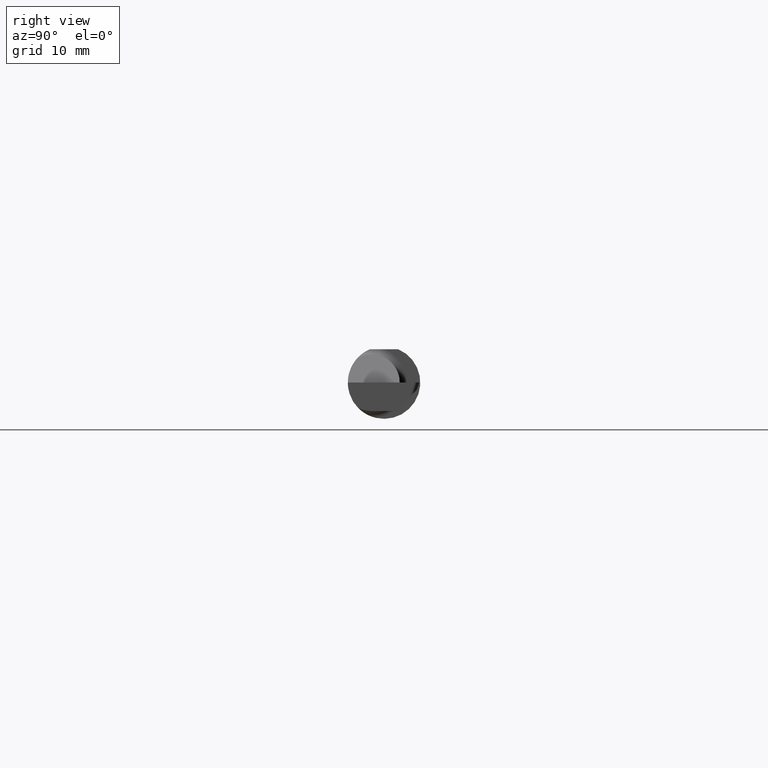
[diagram: clean part render]
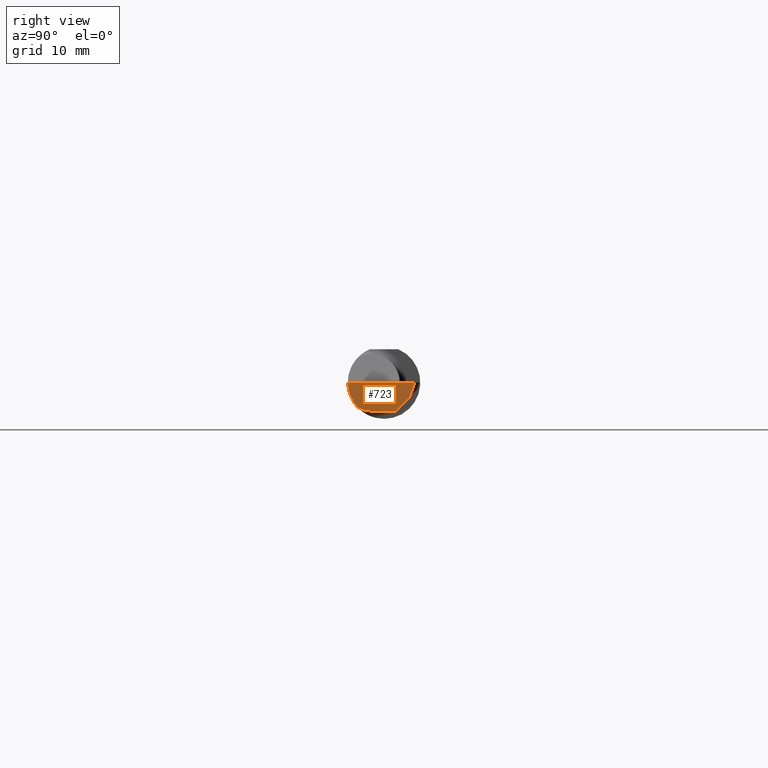
[diagram: same view with one face highlighted and labeled with its STEP entity id]
A machine part, right view. The second image highlights one B-rep face of the part: STEP entity #723.
In plain terms, the highlighted planar face has unit normal (-0.9992, 0.0174, 0.0349).
Its self-contained STEP definition (entity closure, byte-faithful):
#6 = CARTESIAN_POINT ( 'NONE',  ( 2.494002844043214928, -0.04088583791737589873, -0.09800000000000001765 ) ) ;
#15 = DIRECTION ( 'NONE',  ( 0.03490480639812536257, 0.000000000000000000, 0.9993906415863165194 ) ) ;
#25 = ORIENTED_EDGE ( 'NONE', *, *, #378, .F. ) ;
#33 = ORIENTED_EDGE ( 'NONE', *, *, #73, .T. ) ;
#34 = CARTESIAN_POINT ( 'NONE',  ( 2.493664221452986052, -0.06028551311893198816, -0.09800000000000005929 ) ) ;
#61 = ORIENTED_EDGE ( 'NONE', *, *, #649, .F. ) ;
#69 = CARTESIAN_POINT ( 'NONE',  ( 2.497986945264153213, 0.08893015498921681694, -0.04880598229183145953 ) ) ;
#73 = EDGE_CURVE ( 'NONE', #323, #227, #425, .T. ) ;
#110 = CARTESIAN_POINT ( 'NONE',  ( 2.493948486141865484, -0.04400000000000004602, -0.09800000000000001765 ) ) ;
#124 = CARTESIAN_POINT ( 'NONE',  ( 2.493976598891079810, -0.1128945894460737925, -0.06276352435079116110 ) ) ;
#150 = CARTESIAN_POINT ( 'NONE',  ( 2.493546555653489705, -0.09042045454545437344, -0.08630840862739515285 ) ) ;
#155 = LINE ( 'NONE', #544, #316 ) ;
#157 = EDGE_CURVE ( 'NONE', #270, #486, #795, .T. ) ;
#181 = DIRECTION ( 'NONE',  ( -0.01745240643727679480, -0.9998476951563912696, 0.000000000000000000 ) ) ;
#192 = CARTESIAN_POINT ( 'NONE',  ( 2.495410105854944049, 0.03973613728104880005, -0.09800000000000001765 ) ) ;
#212 = CARTESIAN_POINT ( 'NONE',  ( 2.499984884025182375, 0.1057354023860208464, 0.000000000000000000 ) ) ;
#219 = VECTOR ( 'NONE', #551, 39.37007874015748854 ) ;
#227 = VERTEX_POINT ( 'NONE', #212 ) ;
#232 = LINE ( 'NONE', #6, #448 ) ;
#257 = EDGE_CURVE ( 'NONE', #227, #620, #675, .T. ) ;
#265 = PLANE ( 'NONE',  #558 ) ;
#268 = ORIENTED_EDGE ( 'NONE', *, *, #157, .T. ) ;
#270 = VERTEX_POINT ( 'NONE', #481 ) ;
#310 = EDGE_CURVE ( 'NONE', #270, #620, #722, .T. ) ;
#316 = VECTOR ( 'NONE', #401, 39.37007874015748143 ) ;
#323 = VERTEX_POINT ( 'NONE', #69 ) ;
#344 = EDGE_LOOP ( 'NONE', ( #61, #33, #427, #354, #268, #25 ) ) ;
#351 = CARTESIAN_POINT ( 'NONE',  ( 2.499994123636400722, 0.1058131194589338464, 0.0002257067685350752845 ) ) ;
#354 = ORIENTED_EDGE ( 'NONE', *, *, #310, .F. ) ;
#361 = CARTESIAN_POINT ( 'NONE',  ( 2.494820567471968786, -0.1250000000000000000, -0.03254916765648421112 ) ) ;
#378 = EDGE_CURVE ( 'NONE', #543, #486, #232, .T. ) ;
#401 = DIRECTION ( 'NONE',  ( -0.03701368837992469879, -0.7066222423871550973, -0.7066222423871629799 ) ) ;
#425 = LINE ( 'NONE', #351, #541 ) ;
#427 = ORIENTED_EDGE ( 'NONE', *, *, #257, .T. ) ;
#448 = VECTOR ( 'NONE', #181, 39.37007874015748143 ) ;
#481 = CARTESIAN_POINT ( 'NONE',  ( 2.493546555653489705, -0.09042045454545437344, -0.08630840862739515285 ) ) ;
#486 = VERTEX_POINT ( 'NONE', #805 ) ;
#512 = CARTESIAN_POINT ( 'NONE',  ( 2.493546555653489705, -0.09042045454545437344, -0.08630840862739515285 ) ) ;
#541 = VECTOR ( 'NONE', #794, 39.37007874015748143 ) ;
#543 = VERTEX_POINT ( 'NONE', #192 ) ;
#544 = CARTESIAN_POINT ( 'NONE',  ( 2.495862202245279438, 0.04836703517574777317, -0.08936910210530095433 ) ) ;
#551 = DIRECTION ( 'NONE',  ( -0.01745240643727679133, -0.9998476951563912696, 0.000000000000000000 ) ) ;
#558 = AXIS2_PLACEMENT_3D ( 'NONE', #812, #659, #15 ) ;
#570 = CARTESIAN_POINT ( 'NONE',  ( 2.495957382595297869, -0.1250000000000000000, 0.000000000000000000 ) ) ;
#594 = FACE_OUTER_BOUND ( 'NONE', #344, .T. ) ;
#611 = CARTESIAN_POINT ( 'NONE',  ( 2.499997675007925135, 0.1064681972965584866, 0.000000000000000000 ) ) ;
#620 = VERTEX_POINT ( 'NONE', #654 ) ;
#643 = CARTESIAN_POINT ( 'NONE',  ( 2.493527483980555903, -0.07607783494366274213, -0.09402249966297454575 ) ) ;
#649 = EDGE_CURVE ( 'NONE', #323, #543, #155, .T. ) ;
#654 = CARTESIAN_POINT ( 'NONE',  ( 2.495957382595297869, -0.1250000000000000000, 0.000000000000000000 ) ) ;
#659 = DIRECTION ( 'NONE',  ( -0.9992386149554827179, 0.01744177490282344464, 0.03489949670250104552 ) ) ;
#675 = LINE ( 'NONE', #611, #219 ) ;
#722 =( BOUNDED_CURVE ( )  B_SPLINE_CURVE ( 3, ( #512, #124, #361, #570 ),
 .UNSPECIFIED., .F., .T. ) 
 B_SPLINE_CURVE_WITH_KNOTS ( ( 4, 4 ),
 ( 0.3451966888490363705, 1.107331509589553287 ),
 .UNSPECIFIED. ) 
 CURVE ( )  GEOMETRIC_REPRESENTATION_ITEM ( )  RATIONAL_B_SPLINE_CURVE ( ( 1.000000000000000000, 0.9521787881681383903, 0.9521787881681383903, 1.000000000000000000 ) ) 
 REPRESENTATION_ITEM ( '' )  );
#723 = ADVANCED_FACE ( 'NONE', ( #594 ), #265, .F. ) ;
#794 = DIRECTION ( 'NONE',  ( 0.03867711768363032293, 0.3253245514560478280, 0.9448111011136606230 ) ) ;
#795 =( BOUNDED_CURVE ( )  B_SPLINE_CURVE ( 3, ( #150, #643, #34, #110 ),
 .UNSPECIFIED., .F., .F. ) 
 B_SPLINE_CURVE_WITH_KNOTS ( ( 4, 4 ),
 ( 6.253187659403638854, 6.746650124384929725 ),
 .UNSPECIFIED. ) 
 CURVE ( )  GEOMETRIC_REPRESENTATION_ITEM ( )  RATIONAL_B_SPLINE_CURVE ( ( 1.000000000000000000, 0.9798106333074687591, 0.9798106333074687591, 1.000000000000000000 ) ) 
 REPRESENTATION_ITEM ( '' )  );
#805 = CARTESIAN_POINT ( 'NONE',  ( 2.493948486141865484, -0.04400000000000004602, -0.09800000000000001765 ) ) ;
#812 = CARTESIAN_POINT ( 'NONE',  ( 2.499997675007925135, 0.1064681972965584866, 0.000000000000000000 ) ) ;